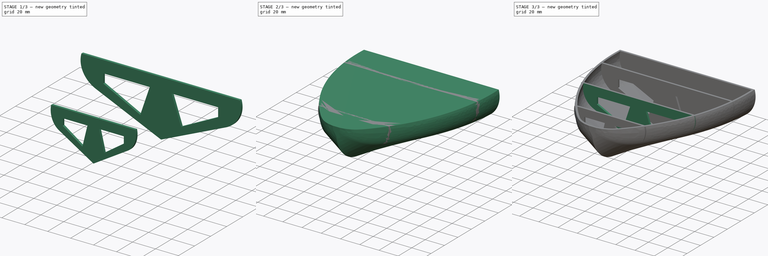
[diagram: build sequence overview — one tinted view per stage of 3, left to right]
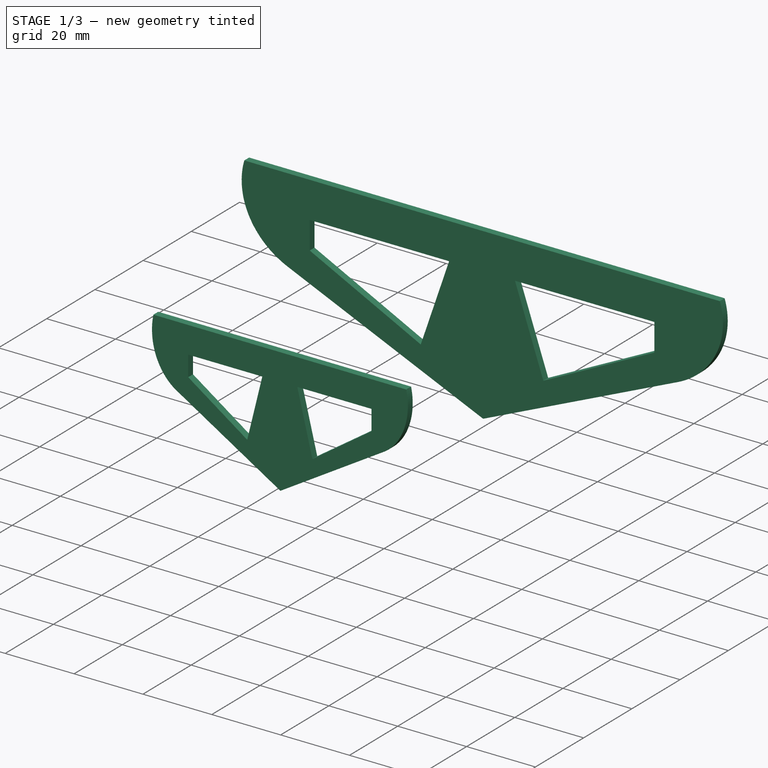
[diagram: stage 1 of 3 — iso view after this stage's code; geometry added in this stage tinted green]
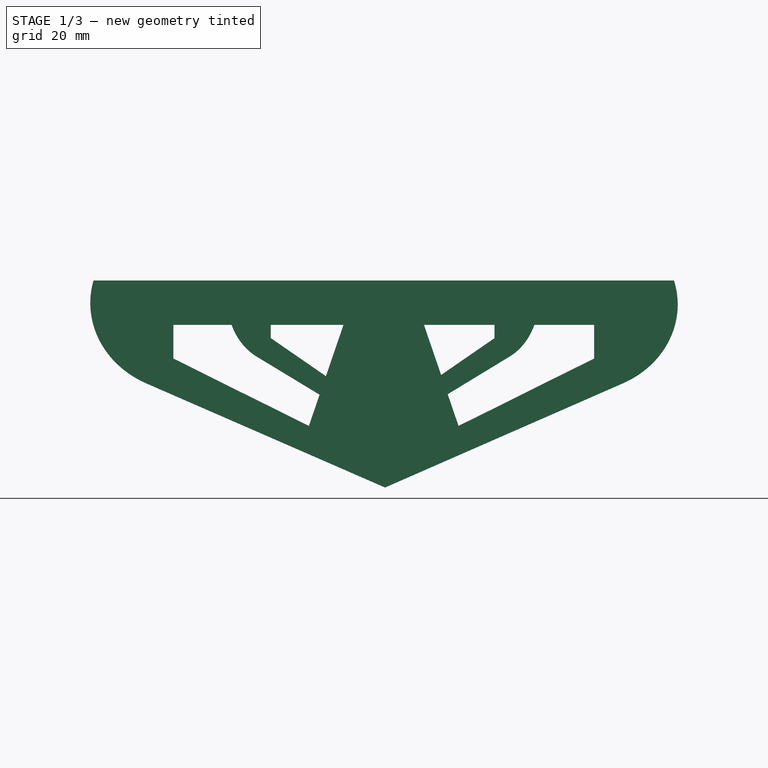
[diagram: stage 1 of 3 — front view after this stage's code; geometry added in this stage tinted green]
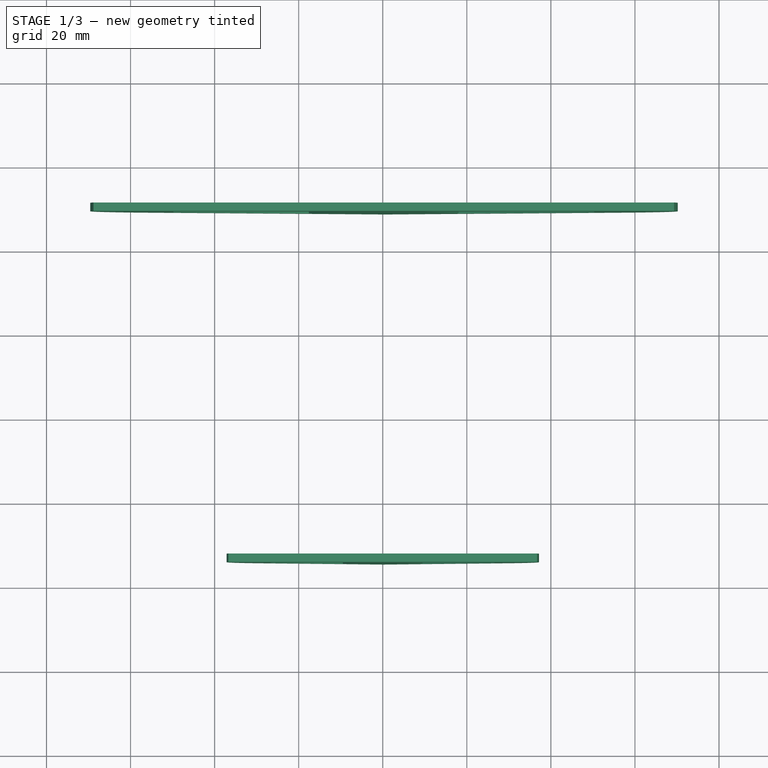
[diagram: stage 1 of 3 — top view after this stage's code; geometry added in this stage tinted green]
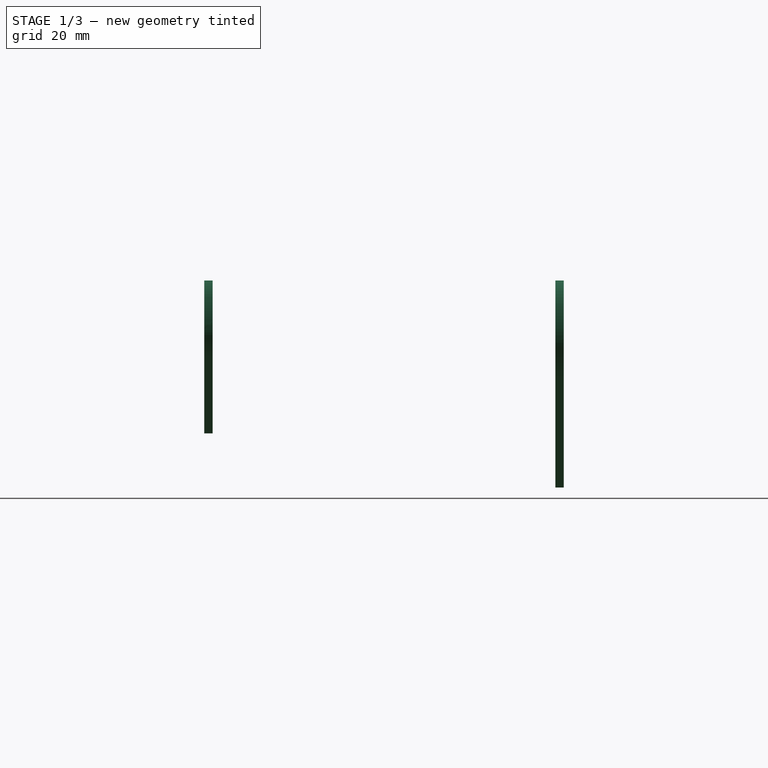
[diagram: stage 1 of 3 — right view after this stage's code; geometry added in this stage tinted green]
FCSTD DOCUMENT  (FreeCAD 0.21R33771 (Git))
Label: BOAT
License: All rights reserved
LicenseURL: http://en.wikipedia.org/wiki/All_rights_reserved
objects: Part::FeaturePython×6, Sketcher::SketchObject×5, Part::Offset2D×2, Part::Cut×1, Part::Face×1, Part::Extrusion×1, Part::MultiFuse×1, App::DocumentObjectGroup×1
note: 17 computed .brp shape members not serialized (recipe doc carries the construction recipe); baked Part::Feature solids carry a one-line shape summary decoded from their .brp

FEATURE [Sketcher::SketchObject] Sketch004  label="CROSS SECTION001"
  FullyConstrained = false
  Placement = pos=(0,0,0) rot=(1,0,0;1.5708rad)
  sketch-geometry (13):
    g0: LineSegment StartX=0.32368 StartY=-55.8673 StartZ=0 EndX=-57.5697 EndY=-27.7782 EndZ=0
    g1: ArcOfCircle CenterX=-47.0398 CenterY=-6.07532 CenterZ=0 NormalX=0 NormalY=0 NormalZ=1 AngleXU=0 Radius=24.1225 StartAngle=2.887 EndAngle=4.26066
    g2: LineSegment StartX=-70.3847 StartY=1.8e-15 StartZ=0 EndX=70.3847 EndY=8.9e-15 EndZ=0
    g3: LineSegment StartX=0.32368 StartY=-55.8673 StartZ=0 EndX=58.0079 EndY=-27.7604 EndZ=0
    g4: ArcOfCircle CenterX=47.6503 CenterY=-6.5033 CenterZ=0 NormalX=0 NormalY=0 NormalZ=1 AngleXU=0 Radius=23.6463 StartAngle=5.16579 EndAngle=6.5618
    g5: LineSegment StartX=-9.75201 StartY=-11.965 StartZ=0 EndX=-18.1456 EndY=-39.2443 EndZ=0
    g6: LineSegment StartX=-18.1456 StartY=-39.2443 StartZ=0 EndX=-51.0207 EndY=-21.0581 EndZ=0
    g7: LineSegment StartX=-51.0207 StartY=-21.0581 StartZ=0 EndX=-51.0207 EndY=-11.965 EndZ=0
    g8: LineSegment StartX=-51.0207 StartY=-11.965 StartZ=0 EndX=-9.75201 EndY=-11.965 EndZ=0
    g9: LineSegment StartX=9.75201 StartY=-11.965 StartZ=0 EndX=18.1456 EndY=-39.2443 EndZ=0
    g10: LineSegment StartX=18.1456 StartY=-39.2443 StartZ=0 EndX=51.0207 EndY=-21.0581 EndZ=0
    g11: LineSegment StartX=51.0207 StartY=-21.0581 StartZ=0 EndX=51.0207 EndY=-11.965 EndZ=0
    g12: LineSegment StartX=51.0207 StartY=-11.965 StartZ=0 EndX=9.75201 EndY=-11.965 EndZ=0
  constraints (19):
    c: Tangent(g1,g0) = 1.5708
    c: Coincident(g2,g1)
    c: Tangent(g4,g3) = -1.5708
    c: Coincident(g0,g3)
    c: Coincident(g2,g4)
    c: PointOnObject(g2,g-1)
    c: Symmetric(g1,g2,g-2)
    c: Coincident(g5,g6)
    c: Coincident(g6,g7)
    c: Coincident(g7,g8)
    c: Coincident(g8,g5)
    c: Horizontal(g8)
    c: Vertical(g7)
    c: Coincident(g9,g10)
    c: Coincident(g10,g11)
    c: Coincident(g11,g12)
    c: Coincident(g12,g9)
    c: Horizontal(g12)
    c: Vertical(g11)
FEATURE [Part::Face] Face
  FaceMakerClass = Part::FaceMakerBullseye
  Sources = -> [Sketch004]
FEATURE [Part::FeaturePython] CurvedArray002  # WARN: FeaturePython — macro-defined, semantics opaque (R4)
  Axis = (0,1,0)
  Base = -> Face
  Distribution = 0
  DistributionReverse = false
  Hullcurves = -> [Offset2D001,Sketch003,Offset2D,Sketch001]
  Items = 3
  KeepBase = 0
  LoftMaxDegree = 5
  MaxLoftSize = 5
  OffsetEnd = 30
  OffsetStart = 25
  Solid = false
  Surface = false
  Twist = 0
FEATURE [Part::Extrusion] Extrude
  Base = -> CurvedArray002
  Dir = (0,1,0)
  DirMode = 0
  FaceMakerClass = Part::FaceMakerBullseye
  LengthFwd = 2
  LengthRev = 0
  Solid = false
  Symmetric = true
FEATURE [Part::FeaturePython] Extrude_child0  label="Extrude.0"  # WARN: FeaturePython — macro-defined, semantics opaque (R4)
  Base = -> Extrude
  FilterType = 1
  Invert = false
  OverrideMaxVal = 0
  WindowFrom = 80
  WindowTo = 100
  items = 0
FEATURE [Part::FeaturePython] Extrude_child2  label="Extrude.2"  # WARN: FeaturePython — macro-defined, semantics opaque (R4)
  Base = -> Extrude
  FilterType = 1
  Invert = false
  OverrideMaxVal = 0
  WindowFrom = 80
  WindowTo = 100
  items = 2
FEATURE [App::DocumentObjectGroup] GrExplode_Extrude  label="Exploded Extrude"
  Group = -> [Extrude_child1,Extrude_child2,Fusion]
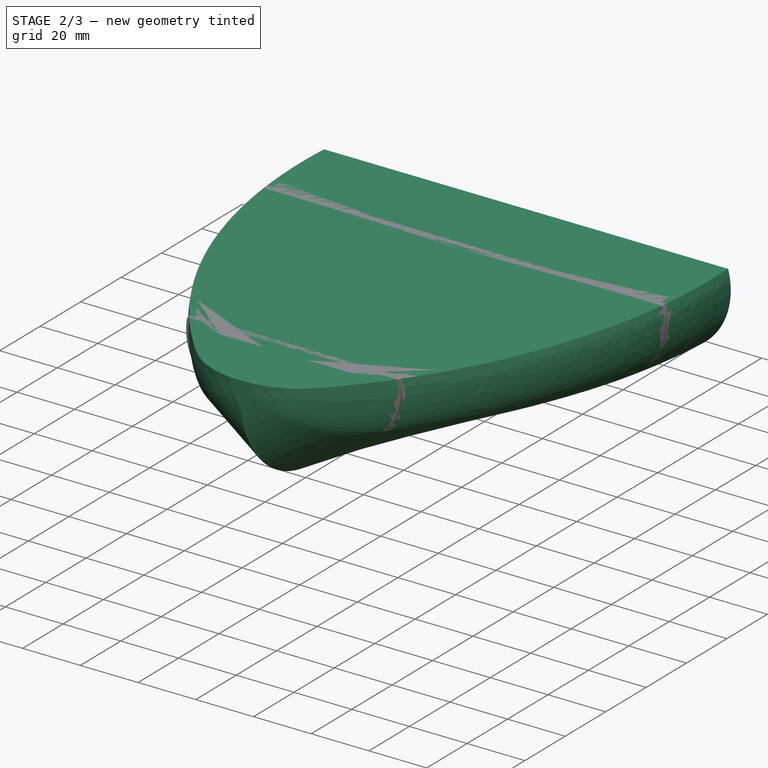
[diagram: stage 2 of 3 — iso view after this stage's code; geometry added in this stage tinted green]
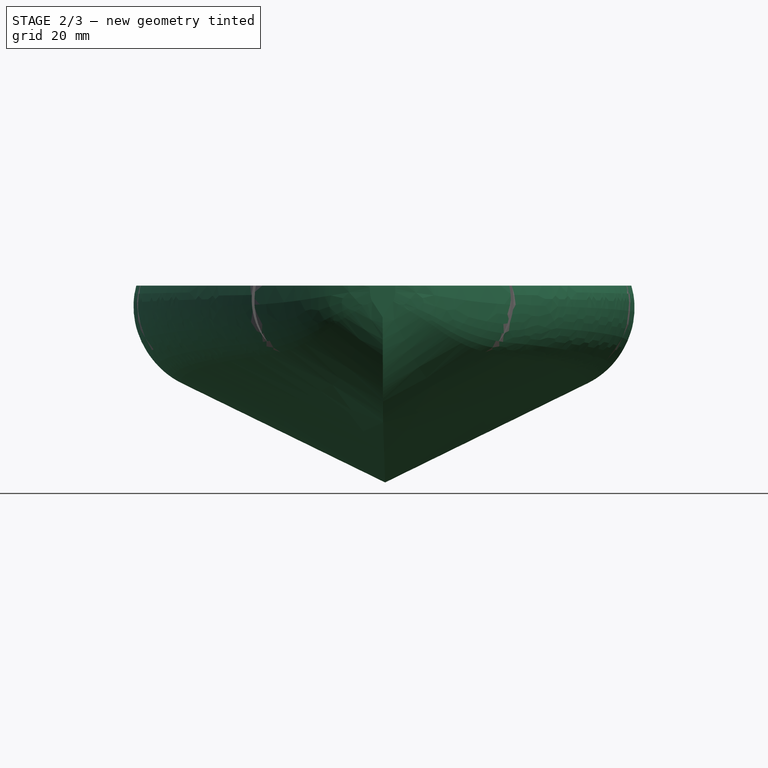
[diagram: stage 2 of 3 — front view after this stage's code; geometry added in this stage tinted green]
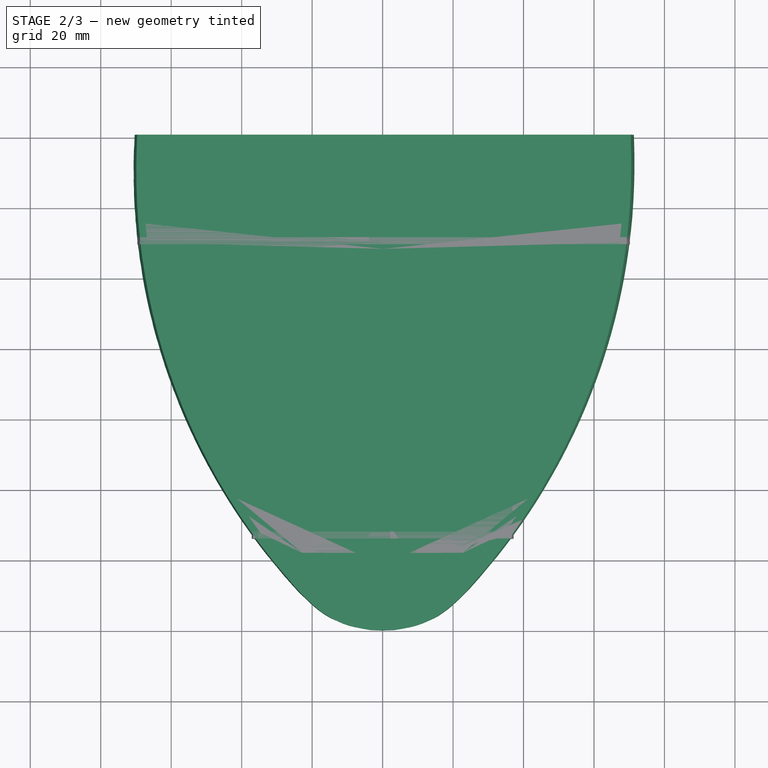
[diagram: stage 2 of 3 — top view after this stage's code; geometry added in this stage tinted green]
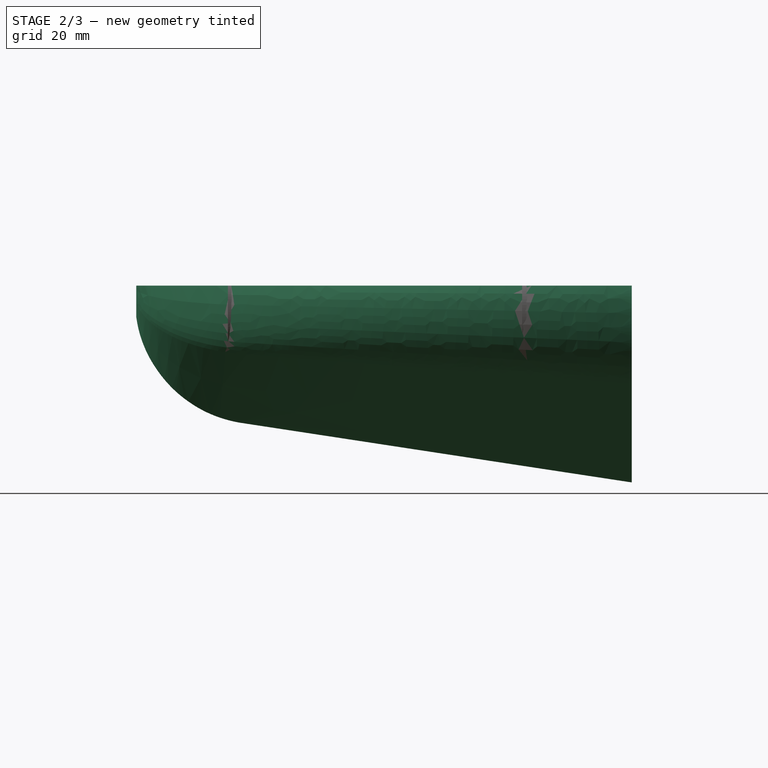
[diagram: stage 2 of 3 — right view after this stage's code; geometry added in this stage tinted green]
FEATURE [Sketcher::SketchObject] Sketch  label="CROSS SECTION"
  FullyConstrained = false
  Placement = pos=(0,0,0) rot=(1,0,0;1.5708rad)
  sketch-geometry (5):
    g0: LineSegment StartX=0.32368 StartY=-55.8673 StartZ=0 EndX=-57.5697 EndY=-27.7782 EndZ=0
    g1: ArcOfCircle CenterX=-47.0398 CenterY=-6.07532 CenterZ=0 NormalX=0 NormalY=0 NormalZ=1 AngleXU=0 Radius=24.1225 StartAngle=2.887 EndAngle=4.26066
    g2: LineSegment StartX=-70.3847 StartY=1.8e-15 StartZ=0 EndX=70.3847 EndY=8.9e-15 EndZ=0
    g3: LineSegment StartX=0.32368 StartY=-55.8673 StartZ=0 EndX=58.0079 EndY=-27.7604 EndZ=0
    g4: ArcOfCircle CenterX=47.6503 CenterY=-6.5033 CenterZ=0 NormalX=0 NormalY=0 NormalZ=1 AngleXU=0 Radius=23.6463 StartAngle=5.16579 EndAngle=6.5618
  constraints (7):
    c: Tangent(g1,g0) = 1.5708
    c: Coincident(g2,g1)
    c: Tangent(g4,g3) = -1.5708
    c: Coincident(g0,g3)
    c: Coincident(g2,g4)
    c: PointOnObject(g2,g-1)
    c: Symmetric(g1,g2,g-2)
FEATURE [Sketcher::SketchObject] Sketch001  label="TOP HULL CURVE"
  ExternalGeometry = -> [Sketch]
  FullyConstrained = false
  sketch-geometry (3):
    g0: ArcOfCircle CenterX=105.029 CenterY=-10.3467 CenterZ=0 NormalX=0 NormalY=0 NormalZ=1 AngleXU=0 Radius=175.719 StartAngle=3.08268 EndAngle=3.89889
    g1: ArcOfCircle CenterX=0 CenterY=-109.633 CenterZ=0 NormalX=0 NormalY=0 NormalZ=1 AngleXU=0 Radius=31.1885 StartAngle=3.89889 EndAngle=5.52589
    g2: ArcOfCircle CenterX=-107.16 CenterY=-8.33237 CenterZ=0 NormalX=0 NormalY=0 NormalZ=1 AngleXU=0 Radius=178.651 StartAngle=5.52589 EndAngle=6.32984
  constraints (6):
    c: Coincident(g0,g-4)
    c: PointOnObject(g1,g-2)
    c: Tangent(g1,g0) = -1.5708
    c: Coincident(g2,g-3)
    c: Tangent(g2,g1) = -1.5708
    c: Horizontal(g1,g0)
FEATURE [Sketcher::SketchObject] Sketch002  label="BOTTOM CURVE"
  ExternalGeometry = -> [Sketch001,Sketch]
  FullyConstrained = false
  Placement = pos=(0,0,0) rot=(0.57735,0.57735,0.57735;2.0944rad)
  sketch-geometry (2):
    g0: ArcOfCircle CenterX=-105.267 CenterY=-3.67917 CenterZ=0 NormalX=0 NormalY=0 NormalZ=1 AngleXU=0 Radius=35.7452 StartAngle=3.03848 EndAngle=4.56126
    g1: LineSegment StartX=-110.648 StartY=-39.017 StartZ=0 EndX=2.84e-14 EndY=-55.8673 EndZ=0
  constraints (3):
    c: Coincident(g0,g-3)
    c: Coincident(g1,g-4)
    c: Tangent(g1,g0) = -1.5708
FEATURE [Sketcher::SketchObject] Sketch003  label="TOP MID LINE"
  ExternalGeometry = -> [Sketch002]
  FullyConstrained = false
  Placement = pos=(0,0,0) rot=(0.57735,0.57735,0.57735;2.0944rad)
  sketch-geometry (1):
    g0: LineSegment StartX=-140.948 StartY=0 StartZ=0 EndX=0 EndY=0 EndZ=0
  constraints (2):
    c: PointOnObject(g0,g-1)
    c: Coincident(g0,g-1)
FEATURE [Part::FeaturePython] CurvedArray  # WARN: FeaturePython — macro-defined, semantics opaque (R4)
  Axis = (0,1,0)
  Base = -> Sketch
  Distribution = 0
  DistributionReverse = false
  Hullcurves = -> [Sketch001,Sketch002,Sketch003]
  Items = 25
  KeepBase = 0
  LoftMaxDegree = 0
  MaxLoftSize = 0
  OffsetEnd = 0
  OffsetStart = 0
  Solid = true
  Surface = false
  Twist = 0
FEATURE [Part::Offset2D] Offset2D
  Fill = false
  Intersection = false
  Join = 0
  Mode = 0
  SelfIntersection = false
  Source = -> Sketch002
  Value = -2
FEATURE [Part::Offset2D] Offset2D001
  Fill = false
  Intersection = false
  Join = 0
  Mode = 0
  SelfIntersection = false
  Source = -> Sketch001
  Value = -2
FEATURE [Part::FeaturePython] CurvedArray001  label="INTERNAL CURVED ARRAY"  # WARN: FeaturePython — macro-defined, semantics opaque (R4)
  Axis = (0,1,0)
  Base = -> Sketch
  Distribution = 0
  DistributionReverse = false
  Hullcurves = -> [Offset2D001,Sketch003,Offset2D]
  Items = 20
  KeepBase = 0
  LoftMaxDegree = 0
  MaxLoftSize = 0
  OffsetEnd = 2
  OffsetStart = 0
  Solid = true
  Surface = false
  Twist = 0
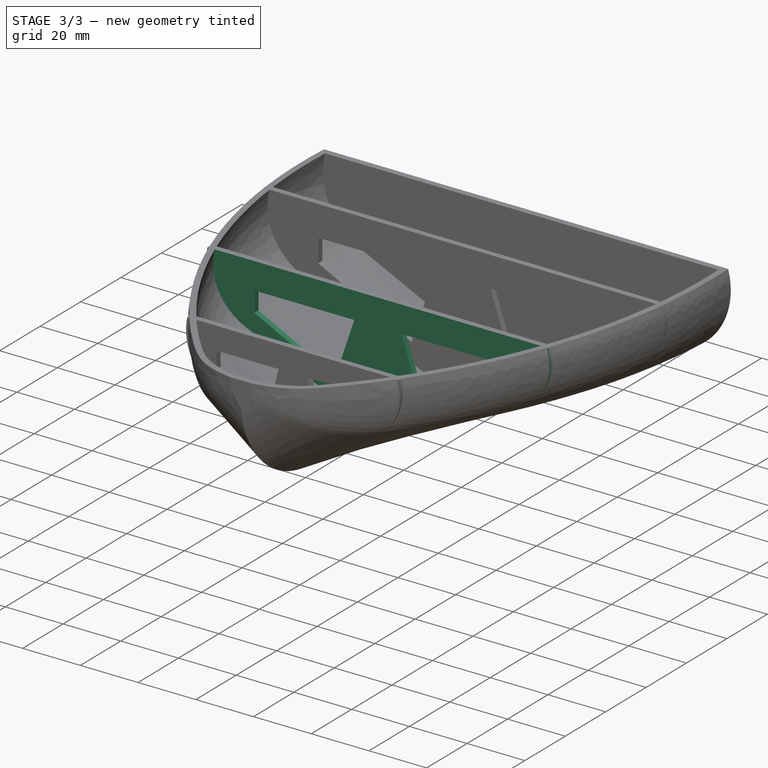
[diagram: stage 3 of 3 — iso view after this stage's code; geometry added in this stage tinted green]
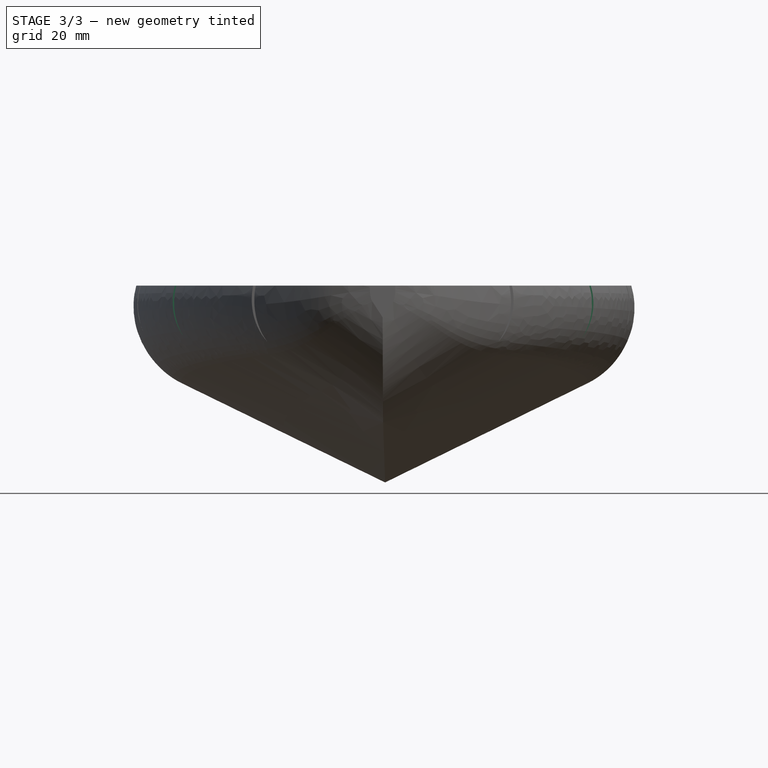
[diagram: stage 3 of 3 — front view after this stage's code; geometry added in this stage tinted green]
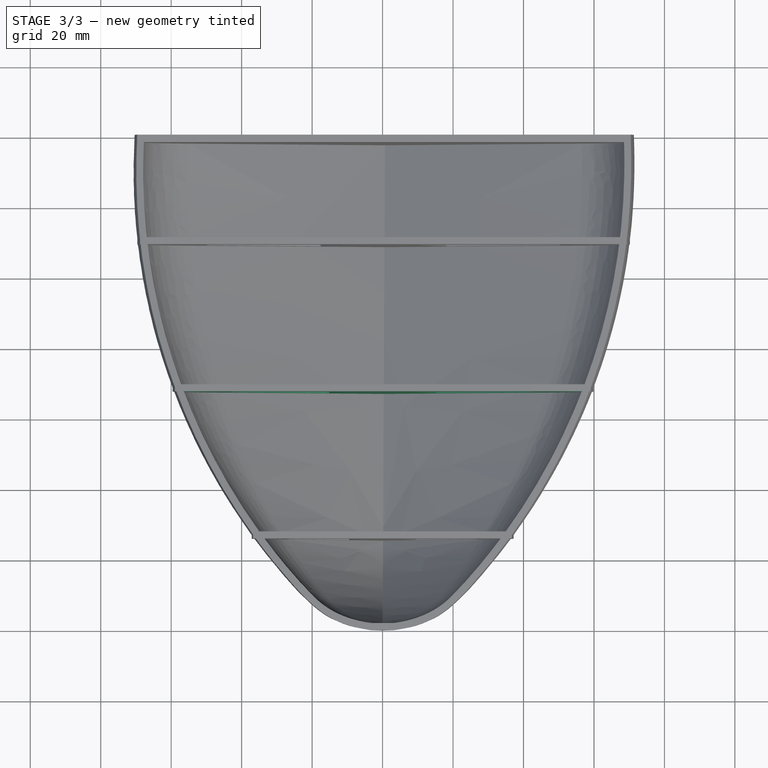
[diagram: stage 3 of 3 — top view after this stage's code; geometry added in this stage tinted green]
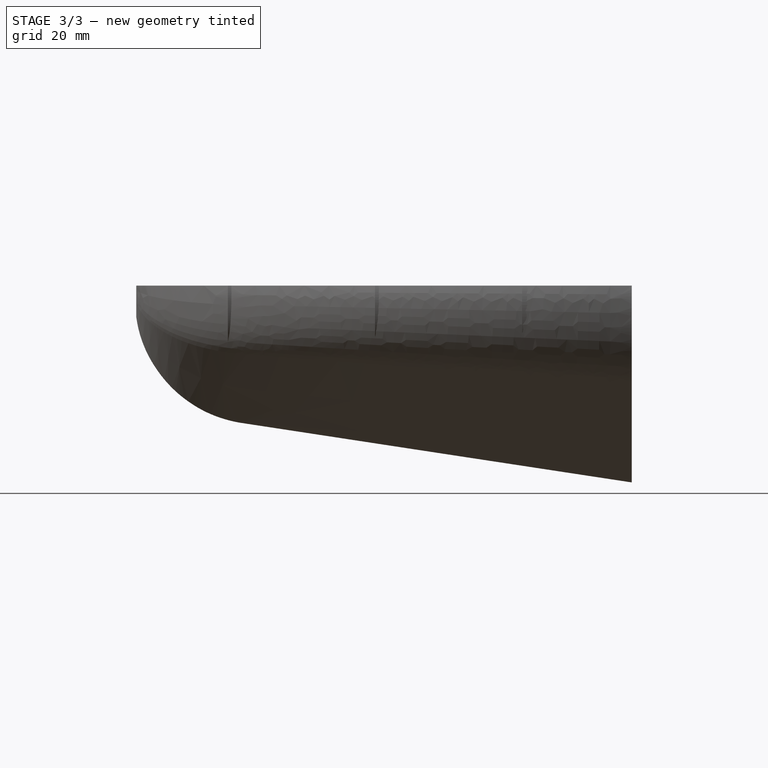
[diagram: stage 3 of 3 — right view after this stage's code; geometry added in this stage tinted green]
FEATURE [Part::Cut] Cut
  Base = -> CurvedArray
  Tool = -> CurvedArray001
FEATURE [Part::FeaturePython] Extrude_child1  label="Extrude.1"  # WARN: FeaturePython — macro-defined, semantics opaque (R4)
  Base = -> Extrude
  FilterType = 1
  Invert = false
  OverrideMaxVal = 0
  WindowFrom = 80
  WindowTo = 100
  items = 1
FEATURE [Part::MultiFuse] Fusion
  Shapes = -> [Cut,Extrude_child0]
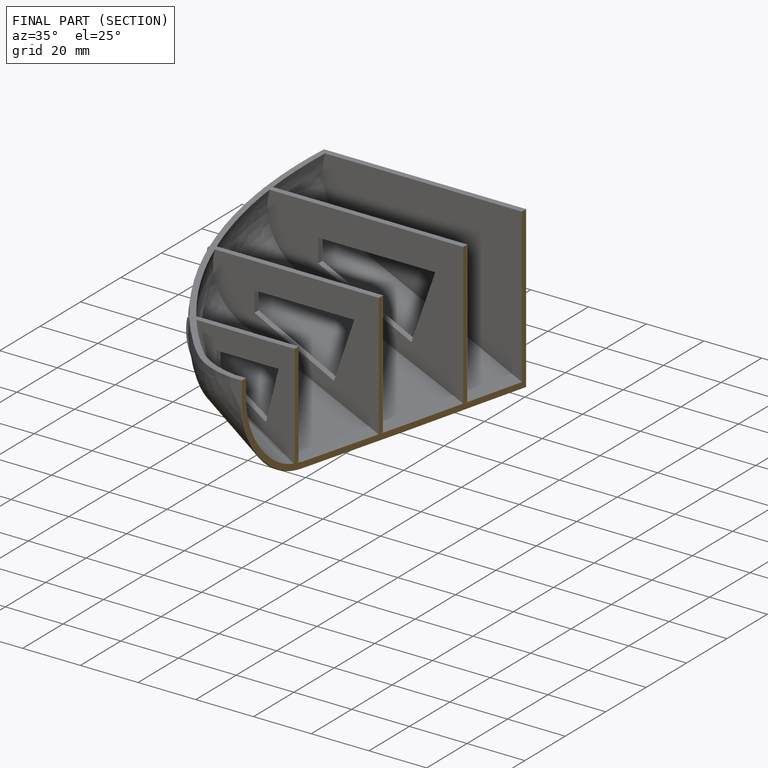
[diagram: finished part — half-section view (interior)]
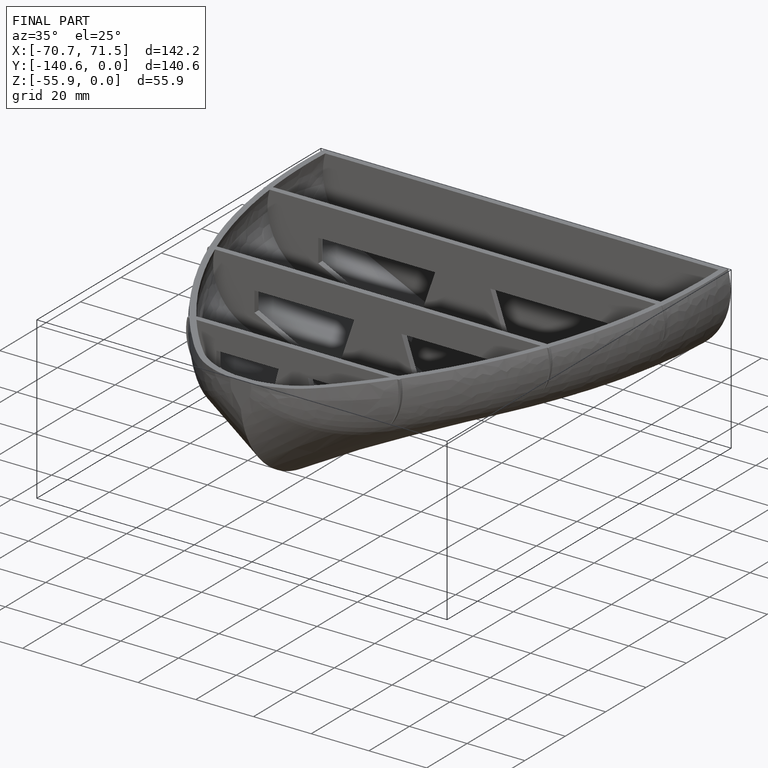
[diagram: finished part — iso view with bounding-box wireframe]
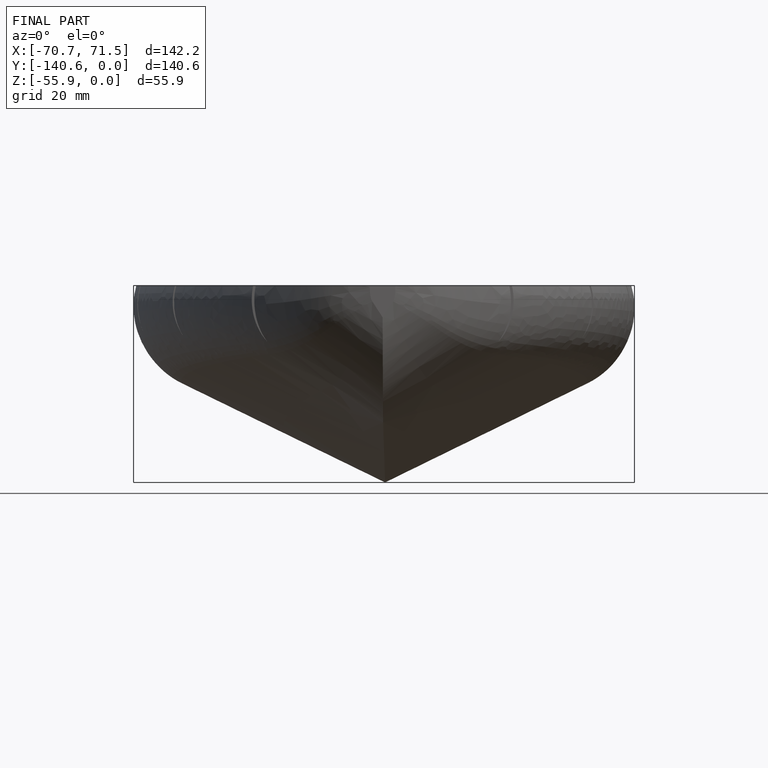
[diagram: finished part — front view with bounding-box wireframe]
